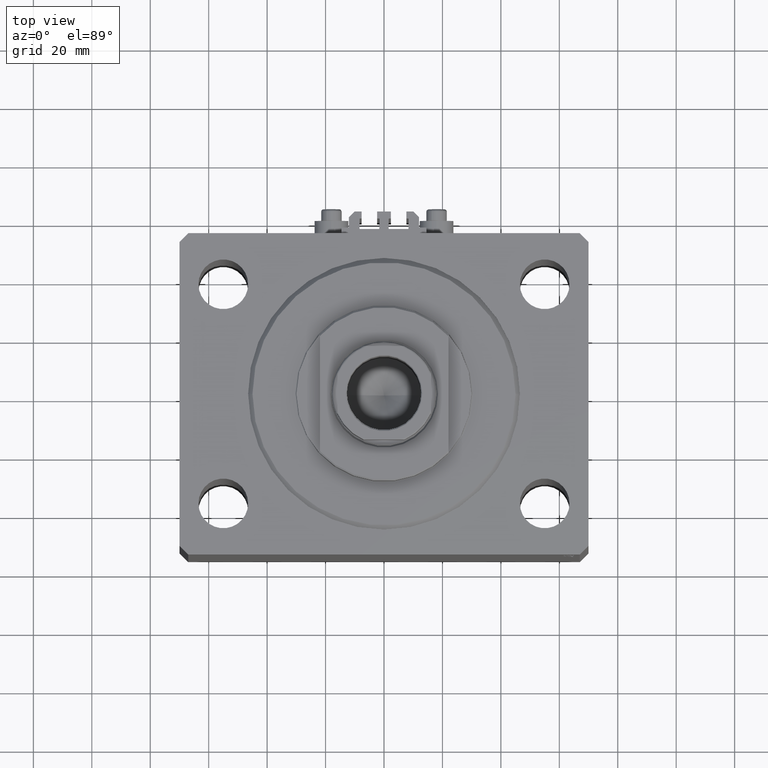
[diagram: clean part render]
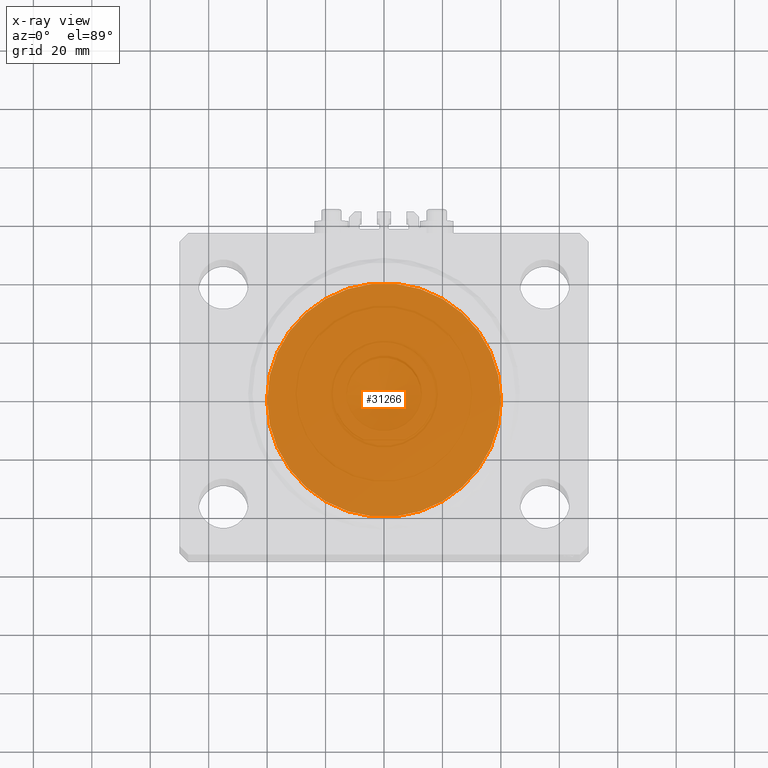
[diagram: x-ray — body ghosted, one internal face saturated and labeled with its STEP entity id]
A machine part, top view, then the same camera in x-ray: the body is ghosted and one INTERNAL B-rep face — a face not visible from any outside direction — is saturated and labeled: STEP entity #31266.
In plain terms, the highlighted planar face has unit normal (0, 0, 1).
Its self-contained STEP definition (entity closure, byte-faithful):
#3807 = EDGE_CURVE ( 'NONE', #32117, #7136, #30455, .T. ) ;
#7136 = VERTEX_POINT ( 'NONE', #12869 ) ;
#9366 = CARTESIAN_POINT ( 'NONE',  ( 0.000000000000000000, 0.000000000000000000, 0.000000000000000000 ) ) ;
#12343 = DIRECTION ( 'NONE',  ( 0.000000000000000000, 0.000000000000000000, 1.000000000000000000 ) ) ;
#12570 = CARTESIAN_POINT ( 'NONE',  ( 0.000000000000000000, 0.000000000000000000, 0.000000000000000000 ) ) ;
#12869 = CARTESIAN_POINT ( 'NONE',  ( 40.00000000000000000, 4.898587196589413026E-15, 0.000000000000000000 ) ) ;
#13463 = AXIS2_PLACEMENT_3D ( 'NONE', #20637, #35236, #38355 ) ;
#14088 = ORIENTED_EDGE ( 'NONE', *, *, #3807, .F. ) ;
#16319 = DIRECTION ( 'NONE',  ( 1.000000000000000000, 0.000000000000000000, 0.000000000000000000 ) ) ;
#17966 = EDGE_LOOP ( 'NONE', ( #14088, #44248 ) ) ;
#19406 = CARTESIAN_POINT ( 'NONE',  ( -40.00000000000000000, 0.000000000000000000, 0.000000000000000000 ) ) ;
#20263 = CIRCLE ( 'NONE', #30989, 40.00000000000000000 ) ;
#20637 = CARTESIAN_POINT ( 'NONE',  ( 0.000000000000000000, 0.000000000000000000, 0.000000000000000000 ) ) ;
#26873 = DIRECTION ( 'NONE',  ( 0.000000000000000000, 0.000000000000000000, 1.000000000000000000 ) ) ;
#27200 = DIRECTION ( 'NONE',  ( 1.000000000000000000, 0.000000000000000000, 0.000000000000000000 ) ) ;
#30455 = CIRCLE ( 'NONE', #35033, 40.00000000000000000 ) ;
#30989 = AXIS2_PLACEMENT_3D ( 'NONE', #12570, #12343, #27200 ) ;
#31266 = ADVANCED_FACE ( 'NONE', ( #42423 ), #39058, .F. ) ;
#32117 = VERTEX_POINT ( 'NONE', #19406 ) ;
#35033 = AXIS2_PLACEMENT_3D ( 'NONE', #9366, #26873, #16319 ) ;
#35236 = DIRECTION ( 'NONE',  ( 0.000000000000000000, 0.000000000000000000, 1.000000000000000000 ) ) ;
#35887 = EDGE_CURVE ( 'NONE', #7136, #32117, #20263, .T. ) ;
#38355 = DIRECTION ( 'NONE',  ( 1.000000000000000000, 0.000000000000000000, -0.000000000000000000 ) ) ;
#39058 = PLANE ( 'NONE',  #13463 ) ;
#42423 = FACE_OUTER_BOUND ( 'NONE', #17966, .T. ) ;
#44248 = ORIENTED_EDGE ( 'NONE', *, *, #35887, .F. ) ;